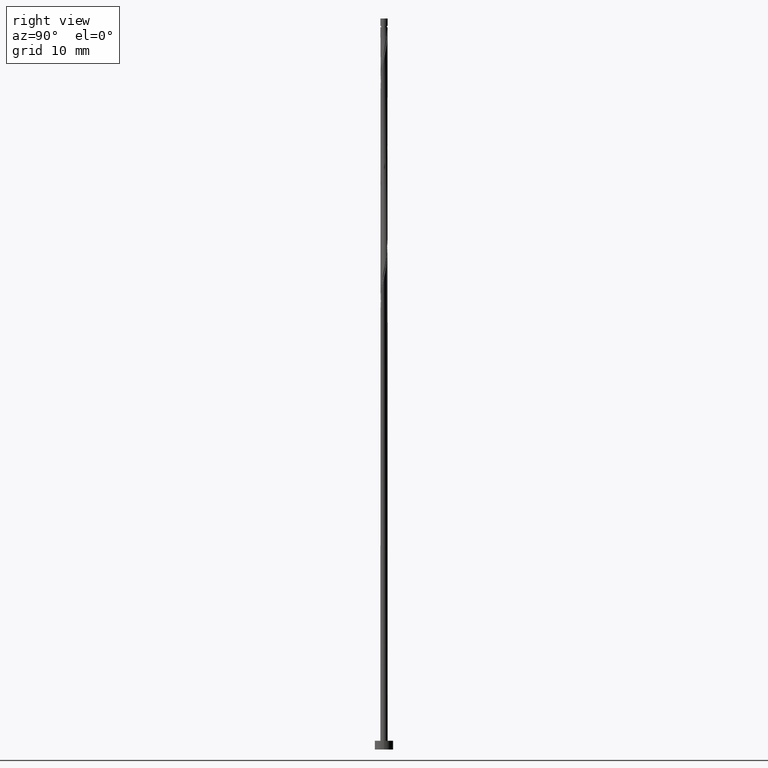
[diagram: clean part render]
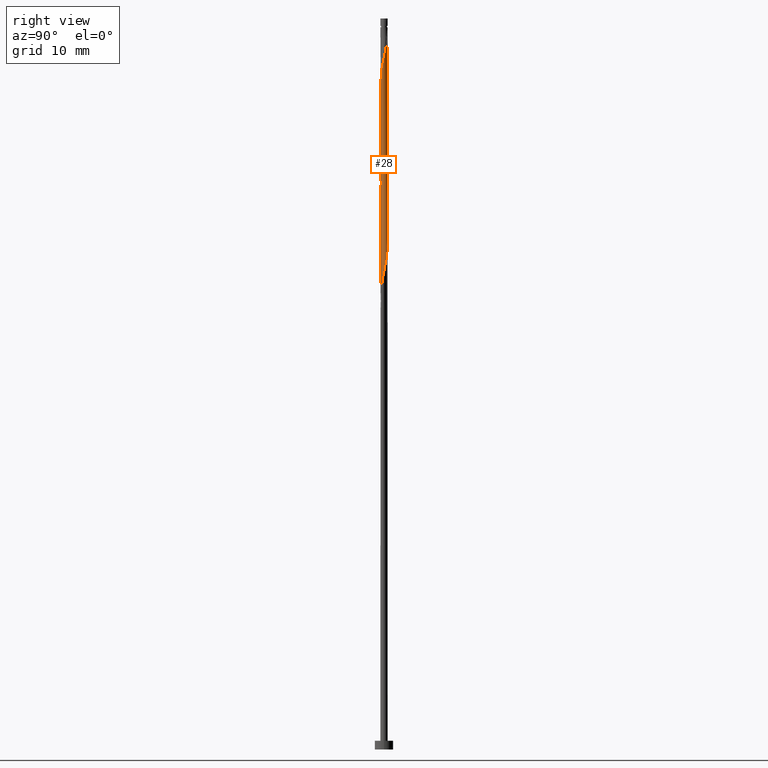
[diagram: same view with one face highlighted and labeled with its STEP entity id]
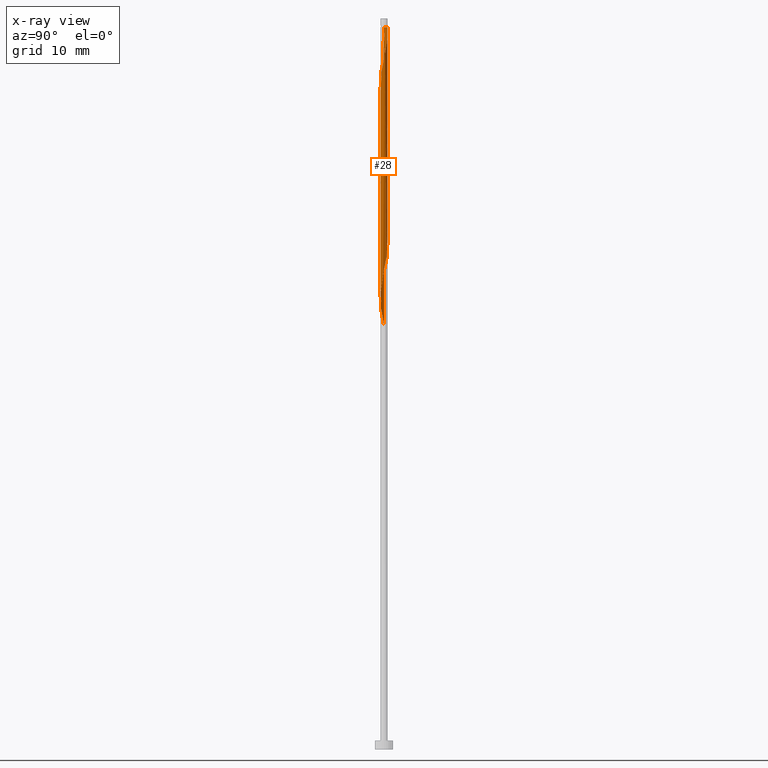
[diagram: x-ray of the same camera — body ghosted, the highlighted face saturated]
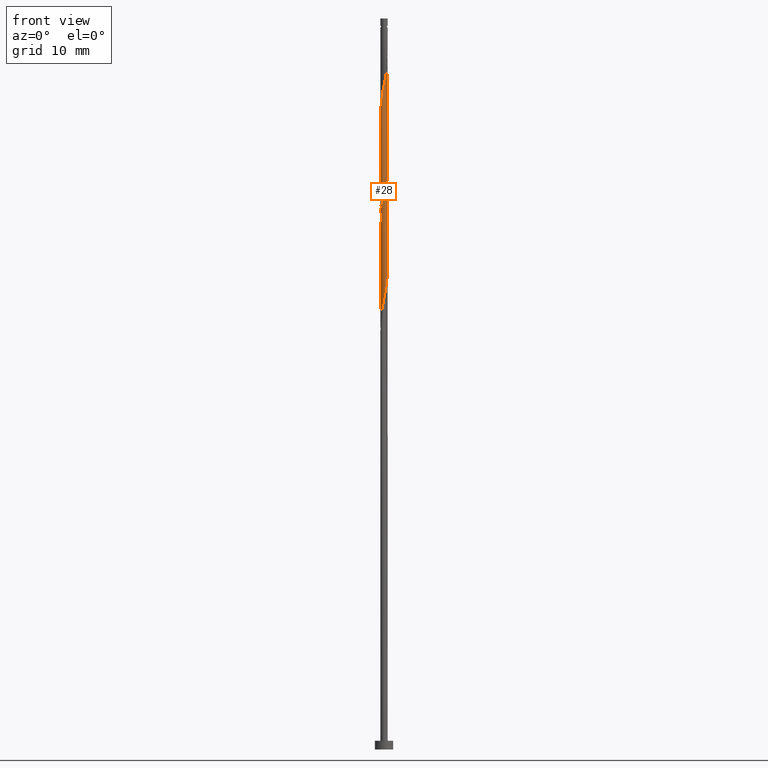
[diagram: same view with one face highlighted and labeled with its STEP entity id]
A machine part, right view. The second image highlights one B-rep face of the part: STEP entity #28.
The next image is the same camera in x-ray: the body ghosted, the highlighted face saturated — about 0% of this face is hidden behind the body in this view.
A second angle (front view) of the same face is appended — the face is thin or edge-on in the first view.
In plain terms, the highlighted cylindrical surface (bore or boss wall) has radius 0.5 mm, axis along (-0, -0, -1).
Its self-contained STEP definition (entity closure, byte-faithful):
#2 = CARTESIAN_POINT ( 'NONE',  ( -0.1612817931379151581, 0.4814156044766936260, 70.05000000000001137 ) ) ;
#5 = CARTESIAN_POINT ( 'NONE',  ( 0.3362772466861008169, 0.3803819322636879940, 67.54999999999999716 ) ) ;
#7 = DIRECTION ( 'NONE',  ( -0.000000000000000000, -0.000000000000000000, -1.000000000000000000 ) ) ;
#25 = CARTESIAN_POINT ( 'NONE',  ( 0.000000000000000000, 0.000000000000000000, 100.0000000000000000 ) ) ;
#28 = ADVANCED_FACE ( 'NONE', ( #635 ), #649, .T. ) ;
#31 = CARTESIAN_POINT ( 'NONE',  ( 0.07409163498720100494, 0.4944799587697403798, 97.96666666666666856 ) ) ;
#46 =( BOUNDED_CURVE ( )  B_SPLINE_CURVE ( 2, ( #1132, #177, #85, #594, #514, #1028, #937, #407, #829, #71, #200, #92, #521, #1237, #291, #340, #958, #843, #640, #117, #540, #1094, #145, #393, #817, #970, #1273, #646, #31, #880, #590 ),
 .UNSPECIFIED., .F., .T. ) 
 B_SPLINE_CURVE_WITH_KNOTS ( ( 3, 2, 2, 2, 2, 2, 2, 2, 2, 2, 2, 2, 2, 2, 2, 3 ),
 ( 0.5545248053855292847, 0.5555555555555555802, 0.5694444444444444198, 0.5833333333333332593, 0.5972222222222222099, 0.6111111111111112715, 0.6250000000000001110, 0.6388888888888889506, 0.6527777777777779011, 0.6666666666666668517, 0.6805555555555556912, 0.6944444444444446418, 0.7083333333333334814, 0.7222222222222224319, 0.7361111111111113825, 0.7500000000000002220 ),
 .UNSPECIFIED. ) 
 CURVE ( )  GEOMETRIC_REPRESENTATION_ITEM ( )  RATIONAL_B_SPLINE_CURVE ( ( 0.9071930855141279171, 0.9080659294509754176, 0.9090909090909153889, 0.8952797754656498519, 0.9090909090909153889, 0.8952797754656498519, 0.9090909090909153889, 0.8952797754656498519, 0.9090909090909153889, 0.8952797754656498519, 0.9090909090909153889, 0.8952797754656498519, 0.9090909090909153889, 0.8952797754656498519, 0.9090909090909153889, 0.8952797754656498519, 0.9090909090909153889, 0.8952797754656498519, 0.9090909090909153889, 0.8952797754656498519, 0.9090909090909153889, 0.8952797754656498519, 0.9090909090909153889, 0.8952797754656498519, 0.9090909090909153889, 0.8952797754656498519, 0.9090909090909153889, 0.8952797754656498519, 0.9090909090909153889, 0.8952797754656496299, 0.9090909090909156109 ) ) 
 REPRESENTATION_ITEM ( '' )  );
#49 = CARTESIAN_POINT ( 'NONE',  ( 0.3911863884632766353, 0.3114052174917097404, 82.13333333333333997 ) ) ;
#55 = CARTESIAN_POINT ( 'NONE',  ( -0.4975590398240158918, 0.1010336722130055070, 87.54999999999999716 ) ) ;
#64 = CARTESIAN_POINT ( 'NONE',  ( -0.5000000000000006661, 1.559254633332027816E-16, 88.02776939948988399 ) ) ;
#70 = DIRECTION ( 'NONE',  ( -0.000000000000000000, -0.000000000000000000, -1.000000000000000000 ) ) ;
#71 = CARTESIAN_POINT ( 'NONE',  ( -0.1612817931379152137, -0.4814156044766937370, 90.05000000000002558 ) ) ;
#75 = AXIS2_PLACEMENT_3D ( 'NONE', #257, #70, #1012 ) ;
#85 = CARTESIAN_POINT ( 'NONE',  ( -0.4998335745014880205, -0.01289952716443847763, 87.13333333333333997 ) ) ;
#92 = CARTESIAN_POINT ( 'NONE',  ( 0.01309852316351374675, -0.5075443130627872446, 90.88333333333333997 ) ) ;
#95 = ORIENTED_EDGE ( 'NONE', *, *, #253, .F. ) ;
#103 = CARTESIAN_POINT ( 'NONE',  ( -0.4998335745014880205, 0.01289952716443853141, 72.96666666666664014 ) ) ;
#110 = CARTESIAN_POINT ( 'NONE',  ( -0.3911863884632766353, -0.3114052174917097404, 74.63333333333331154 ) ) ;
#117 = CARTESIAN_POINT ( 'NONE',  ( 0.5021081091789604267, -0.07523461788412882933, 94.21666666666666856 ) ) ;
#131 = ORIENTED_EDGE ( 'NONE', *, *, #234, .F. ) ;
#145 = CARTESIAN_POINT ( 'NONE',  ( 0.4652780234504774182, 0.1830747412780303895, 95.46666666666666856 ) ) ;
#159 = CARTESIAN_POINT ( 'NONE',  ( -0.4329970070769387780, 0.2651158103430555912, 86.71666666666666856 ) ) ;
#171 = EDGE_CURVE ( 'NONE', #1353, #1081, #1303, .T. ) ;
#177 = CARTESIAN_POINT ( 'NONE',  ( -0.5000000000000007772, -0.006450837166011485872, 87.10284623704926332 ) ) ;
#197 = CARTESIAN_POINT ( 'NONE',  ( 0.1612817931379150194, -0.4814156044766936260, 62.54999999999999716 ) ) ;
#200 = CARTESIAN_POINT ( 'NONE',  ( -0.07409163498720072738, -0.4944799587697403798, 90.46666666666665435 ) ) ;
#204 = VERTEX_POINT ( 'NONE', #1307 ) ;
#211 = CARTESIAN_POINT ( 'NONE',  ( -0.2387454690295328086, 0.4393183367648896831, 70.46666666666666856 ) ) ;
#219 = CARTESIAN_POINT ( 'NONE',  ( 0.3162091449211504313, -0.3972210690530859067, 78.38333333333332575 ) ) ;
#225 = CARTESIAN_POINT ( 'NONE',  ( -0.4460955302404527312, -0.2424285027197316256, 74.21666666666666856 ) ) ;
#234 = EDGE_CURVE ( 'NONE', #1353, #204, #46, .T. ) ;
#244 = CARTESIAN_POINT ( 'NONE',  ( 0.5000000000000000000, 6.123233995736766036E-17, 98.79999999999999716 ) ) ;
#248 = CARTESIAN_POINT ( 'NONE',  ( -0.5000000000000006661, -4.855164127740446616E-16, 58.02776939948987689 ) ) ;
#249 = ORIENTED_EDGE ( 'NONE', *, *, #1255, .T. ) ;
#253 = EDGE_CURVE ( 'NONE', #301, #287, #383, .T. ) ;
#257 = CARTESIAN_POINT ( 'NONE',  ( 0.000000000000000000, 0.000000000000000000, 98.79999999999999716 ) ) ;
#275 = CARTESIAN_POINT ( 'NONE',  ( -0.2387454690295328086, 0.4393183367648896831, 85.46666666666665435 ) ) ;
#276 = EDGE_CURVE ( 'NONE', #1226, #1081, #1288, .T. ) ;
#287 = VERTEX_POINT ( 'NONE', #963 ) ;
#291 = CARTESIAN_POINT ( 'NONE',  ( 0.2610881054719552119, -0.4264188096004513095, 92.13333333333335418 ) ) ;
#301 = VERTEX_POINT ( 'NONE', #1169 ) ;
#303 = CARTESIAN_POINT ( 'NONE',  ( 0.4998335745014881315, -0.01289952716443870315, 65.46666666666666856 ) ) ;
#312 = CARTESIAN_POINT ( 'NONE',  ( -0.2610881054719552674, -0.4264188096004511985, 60.46666666666666146 ) ) ;
#315 = CARTESIAN_POINT ( 'NONE',  ( -0.5021081091789604267, -0.07523461788412846851, 73.38333333333332575 ) ) ;
#320 = CARTESIAN_POINT ( 'NONE',  ( -0.3362772466861005394, -0.3803819322636881606, 60.04999999999998295 ) ) ;
#325 = CARTESIAN_POINT ( 'NONE',  ( -0.09949874371066196044, -0.4900000000000007683, 76.30000000000001137 ) ) ;
#326 = DIRECTION ( 'NONE',  ( -1.000000000000000000, 0.000000000000000000, 0.000000000000000000 ) ) ;
#331 = CARTESIAN_POINT ( 'NONE',  ( -0.3362772466861005394, -0.3803819322636881606, 75.05000000000001137 ) ) ;
#334 = CARTESIAN_POINT ( 'NONE',  ( 0.4741018197097064957, 0.1588315603019300470, 66.29999999999999716 ) ) ;
#340 = CARTESIAN_POINT ( 'NONE',  ( 0.3362772466861005394, -0.3803819322636883271, 92.55000000000001137 ) ) ;
#354 =( BOUNDED_CURVE ( )  B_SPLINE_CURVE ( 2, ( #64, #784, #1223, #55, #1110, #159, #1314, #1131, #275, #1105, #488, #997, #910, #467, #573, #1003, #49, #474, #895, #374, #790 ),
 .UNSPECIFIED., .F., .T. ) 
 B_SPLINE_CURVE_WITH_KNOTS ( ( 3, 2, 2, 2, 2, 2, 2, 2, 2, 2, 3 ),
 ( 0.4295248053855291737, 0.4305555555555555802, 0.4444444444444444198, 0.4583333333333333148, 0.4722222222222222099, 0.4861111111111111049, 0.5000000000000000000, 0.5138888888888888395, 0.5277777777777777901, 0.5416666666666666297, 0.5545248053855290626 ),
 .UNSPECIFIED. ) 
 CURVE ( )  GEOMETRIC_REPRESENTATION_ITEM ( )  RATIONAL_B_SPLINE_CURVE ( ( 0.9071930855141275840, 0.9080659294509750845, 0.9090909090909150558, 0.8952797754656496299, 0.9090909090909150558, 0.8952797754656496299, 0.9090909090909150558, 0.8952797754656496299, 0.9090909090909150558, 0.8952797754656496299, 0.9090909090909150558, 0.8952797754656496299, 0.9090909090909150558, 0.8952797754656496299, 0.9090909090909150558, 0.8952797754656496299, 0.9090909090909150558, 0.8952797754656496299, 0.9090909090909150558, 0.8963047551055897122, 0.9071930855141273620 ) ) 
 REPRESENTATION_ITEM ( '' )  );
#362 = CARTESIAN_POINT ( 'NONE',  ( -0.5000000000000000000, 0.000000000000000000, 100.0000000000000000 ) ) ;
#374 = CARTESIAN_POINT ( 'NONE',  ( 0.5000000000000006661, 0.08152718591022839467, 80.91469696061896855 ) ) ;
#383 = LINE ( 'NONE', #429, #1184 ) ;
#387 = ORIENTED_EDGE ( 'NONE', *, *, #1268, .F. ) ;
#393 = CARTESIAN_POINT ( 'NONE',  ( 0.4329970070769391111, 0.2651158103430553137, 95.88333333333333997 ) ) ;
#407 = CARTESIAN_POINT ( 'NONE',  ( -0.3162091449211504868, -0.3972210690530860178, 89.21666666666668277 ) ) ;
#412 = CARTESIAN_POINT ( 'NONE',  ( -0.1858989642578100510, -0.4724556869372142365, 60.88333333333333286 ) ) ;
#421 = CARTESIAN_POINT ( 'NONE',  ( -0.01309852316351412145, -0.5075443130627871335, 61.71666666666667567 ) ) ;
#423 = CARTESIAN_POINT ( 'NONE',  ( 0.2387454690295328086, -0.4393183367648896831, 77.96666666666666856 ) ) ;
#429 = CARTESIAN_POINT ( 'NONE',  ( -0.5000000000000000000, 0.000000000000000000, 100.0000000000000000 ) ) ;
#454 = VECTOR ( 'NONE', #961, 1000.000000000000000 ) ;
#467 = CARTESIAN_POINT ( 'NONE',  ( 0.1858989642578099122, 0.4724556869372143475, 83.38333333333332575 ) ) ;
#474 = CARTESIAN_POINT ( 'NONE',  ( 0.4460955302404527867, 0.2424285027197315423, 81.71666666666664014 ) ) ;
#488 = CARTESIAN_POINT ( 'NONE',  ( -0.07409163498720063024, 0.4944799587697402687, 84.63333333333332575 ) ) ;
#514 = CARTESIAN_POINT ( 'NONE',  ( -0.4652780234504773071, -0.1830747412780305006, 87.96666666666666856 ) ) ;
#520 = CARTESIAN_POINT ( 'NONE',  ( 0.5021081091789604267, 0.07523461788412814932, 65.88333333333332575 ) ) ;
#521 = CARTESIAN_POINT ( 'NONE',  ( 0.09949874371066182166, -0.4900000000000008238, 91.30000000000002558 ) ) ;
#530 = CARTESIAN_POINT ( 'NONE',  ( -0.4975590398240158918, 0.1010336722130055070, 72.54999999999999716 ) ) ;
#540 = CARTESIAN_POINT ( 'NONE',  ( 0.4998335745014880205, 0.01289952716443851580, 94.63333333333335418 ) ) ;
#573 = CARTESIAN_POINT ( 'NONE',  ( 0.2610881054719556005, 0.4264188096004509765, 82.96666666666664014 ) ) ;
#580 = CARTESIAN_POINT ( 'NONE',  ( 0.5000000000000007772, 2.959782747103310096E-16, 80.52776939948985557 ) ) ;
#590 = CARTESIAN_POINT ( 'NONE',  ( -0.09949874371066166900, 0.4899999999999998801, 98.80000000000001137 ) ) ;
#594 = CARTESIAN_POINT ( 'NONE',  ( -0.4975590398240160028, -0.1010336722130054932, 87.55000000000001137 ) ) ;
#613 = CARTESIAN_POINT ( 'NONE',  ( 0.09949874371066202983, 0.4900000000000007683, 68.80000000000001137 ) ) ;
#627 = CARTESIAN_POINT ( 'NONE',  ( 0.4652780234504772516, -0.1830747412780305561, 79.63333333333333997 ) ) ;
#632 = CARTESIAN_POINT ( 'NONE',  ( 0.4975590398240158918, -0.1010336722130055764, 65.04999999999999716 ) ) ;
#634 = CARTESIAN_POINT ( 'NONE',  ( -0.4652780234504771961, 0.1830747412780305838, 72.13333333333333997 ) ) ;
#635 = FACE_OUTER_BOUND ( 'NONE', #1343, .T. ) ;
#640 = CARTESIAN_POINT ( 'NONE',  ( 0.4741018197097065512, -0.1588315603019302691, 93.80000000000001137 ) ) ;
#641 = CARTESIAN_POINT ( 'NONE',  ( 0.07409163498720061636, -0.4944799587697402687, 77.13333333333332575 ) ) ;
#646 = CARTESIAN_POINT ( 'NONE',  ( 0.1612817931379155190, 0.4814156044766936260, 97.54999999999999716 ) ) ;
#649 = CYLINDRICAL_SURFACE ( 'NONE', #1283, 0.5000000000000000000 ) ;
#654 = ORIENTED_EDGE ( 'NONE', *, *, #171, .T. ) ;
#655 = DIRECTION ( 'NONE',  ( -0.000000000000000000, -0.000000000000000000, -1.000000000000000000 ) ) ;
#717 = ORIENTED_EDGE ( 'NONE', *, *, #1309, .F. ) ;
#738 = CARTESIAN_POINT ( 'NONE',  ( -0.3746030759990446324, 0.3311684396980706935, 71.29999999999999716 ) ) ;
#743 = CARTESIAN_POINT ( 'NONE',  ( 0.01309852316351392196, 0.5075443130627870225, 69.21666666666665435 ) ) ;
#748 = CARTESIAN_POINT ( 'NONE',  ( -0.4741018197097065512, -0.1588315603019298805, 58.80000000000000426 ) ) ;
#750 = CARTESIAN_POINT ( 'NONE',  ( -0.4741018197097065512, -0.1588315603019298805, 73.79999999999999716 ) ) ;
#755 = CARTESIAN_POINT ( 'NONE',  ( 0.2387454690295328086, -0.4393183367648896831, 62.96666666666668277 ) ) ;
#780 = DIRECTION ( 'NONE',  ( -0.000000000000000000, -0.000000000000000000, -1.000000000000000000 ) ) ;
#784 = CARTESIAN_POINT ( 'NONE',  ( -0.5000000000000006661, 0.006450837166010866576, 87.99715376295075941 ) ) ;
#790 = CARTESIAN_POINT ( 'NONE',  ( 0.5000000000000007772, 2.959782747103310096E-16, 80.52776939948985557 ) ) ;
#797 = ORIENTED_EDGE ( 'NONE', *, *, #1309, .T. ) ;
#817 = CARTESIAN_POINT ( 'NONE',  ( 0.3746030759990447989, 0.3311684396980708045, 96.30000000000001137 ) ) ;
#819 = LINE ( 'NONE', #1135, #454 ) ;
#824 = VECTOR ( 'NONE', #780, 1000.000000000000000 ) ;
#826 = CARTESIAN_POINT ( 'NONE',  ( 0.4460955302404527867, 0.2424285027197315423, 66.71666666666668277 ) ) ;
#829 = CARTESIAN_POINT ( 'NONE',  ( -0.2387454690295328918, -0.4393183367648896831, 89.63333333333331154 ) ) ;
#834 = CARTESIAN_POINT ( 'NONE',  ( -0.3911863884632766353, -0.3114052174917097404, 59.63333333333333286 ) ) ;
#837 = CARTESIAN_POINT ( 'NONE',  ( 0.5000000000000007772, 2.959782747103310096E-16, 80.52776939948985557 ) ) ;
#841 = CARTESIAN_POINT ( 'NONE',  ( 0.2610881054719556005, 0.4264188096004509765, 67.96666666666668277 ) ) ;
#843 = CARTESIAN_POINT ( 'NONE',  ( 0.4460955302404527867, -0.2424285027197316811, 93.38333333333333997 ) ) ;
#844 = CARTESIAN_POINT ( 'NONE',  ( -0.07409163498720063024, 0.4944799587697402687, 69.63333333333333997 ) ) ;
#853 = CARTESIAN_POINT ( 'NONE',  ( 0.4329970070769386670, -0.2651158103430559243, 79.21666666666665435 ) ) ;
#856 = CARTESIAN_POINT ( 'NONE',  ( 0.07409163498720061636, -0.4944799587697402687, 62.13333333333331865 ) ) ;
#880 = CARTESIAN_POINT ( 'NONE',  ( -0.01309852316351531321, 0.5075443130627873556, 98.38333333333332575 ) ) ;
#895 = CARTESIAN_POINT ( 'NONE',  ( 0.4741018197097064957, 0.1588315603019300470, 81.29999999999999716 ) ) ;
#910 = CARTESIAN_POINT ( 'NONE',  ( 0.09949874371066202983, 0.4900000000000007683, 83.79999999999998295 ) ) ;
#937 = CARTESIAN_POINT ( 'NONE',  ( -0.3746030759990447989, -0.3311684396980705825, 88.79999999999996874 ) ) ;
#945 = CARTESIAN_POINT ( 'NONE',  ( -0.5000000000000007772, -9.803696796398973244E-17, 87.07223060051012453 ) ) ;
#946 = CARTESIAN_POINT ( 'NONE',  ( 0.4652780234504772516, -0.1830747412780305561, 64.63333333333333997 ) ) ;
#954 = CARTESIAN_POINT ( 'NONE',  ( 0.1858989642578099122, 0.4724556869372143475, 68.38333333333333997 ) ) ;
#958 = CARTESIAN_POINT ( 'NONE',  ( 0.3911863884632766908, -0.3114052174917099070, 92.96666666666666856 ) ) ;
#959 = CARTESIAN_POINT ( 'NONE',  ( -0.2610881054719552674, -0.4264188096004511985, 75.46666666666665435 ) ) ;
#961 = DIRECTION ( 'NONE',  ( -0.000000000000000000, -0.000000000000000000, -1.000000000000000000 ) ) ;
#963 = CARTESIAN_POINT ( 'NONE',  ( -0.5000000000000006661, 1.559254633332027816E-16, 88.02776939948988399 ) ) ;
#966 = CARTESIAN_POINT ( 'NONE',  ( 0.5000000000000007772, -0.006450837166010383456, 80.49715376295073099 ) ) ;
#970 = CARTESIAN_POINT ( 'NONE',  ( 0.3162091449211505423, 0.3972210690530860178, 96.71666666666665435 ) ) ;
#997 = CARTESIAN_POINT ( 'NONE',  ( 0.01309852316351392196, 0.5075443130627870225, 84.21666666666668277 ) ) ;
#1003 = CARTESIAN_POINT ( 'NONE',  ( 0.3362772466861008169, 0.3803819322636879940, 82.54999999999998295 ) ) ;
#1012 = DIRECTION ( 'NONE',  ( -1.000000000000000000, 0.000000000000000000, 0.000000000000000000 ) ) ;
#1028 = CARTESIAN_POINT ( 'NONE',  ( -0.4329970070769388890, -0.2651158103430555912, 88.38333333333331154 ) ) ;
#1042 = CARTESIAN_POINT ( 'NONE',  ( -0.4460955302404527312, -0.2424285027197316256, 59.21666666666666146 ) ) ;
#1052 = CARTESIAN_POINT ( 'NONE',  ( 0.4329970070769386670, -0.2651158103430559243, 64.21666666666665435 ) ) ;
#1054 = CARTESIAN_POINT ( 'NONE',  ( -0.1858989642578100510, -0.4724556869372142365, 75.88333333333333997 ) ) ;
#1057 = CIRCLE ( 'NONE', #75, 0.5000000000000002220 ) ;
#1061 = CARTESIAN_POINT ( 'NONE',  ( 0.4975590398240158918, -0.1010336722130055764, 80.05000000000002558 ) ) ;
#1066 = CARTESIAN_POINT ( 'NONE',  ( -0.01309852316351412145, -0.5075443130627871335, 76.71666666666666856 ) ) ;
#1081 = VERTEX_POINT ( 'NONE', #248 ) ;
#1094 = CARTESIAN_POINT ( 'NONE',  ( 0.4975590398240160028, 0.1010336722130053960, 95.04999999999998295 ) ) ;
#1100 = VERTEX_POINT ( 'NONE', #244 ) ;
#1105 = CARTESIAN_POINT ( 'NONE',  ( -0.1612817931379151581, 0.4814156044766936260, 85.04999999999996874 ) ) ;
#1110 = CARTESIAN_POINT ( 'NONE',  ( -0.4652780234504771961, 0.1830747412780305838, 87.13333333333333997 ) ) ;
#1131 = CARTESIAN_POINT ( 'NONE',  ( -0.3162091449211504313, 0.3972210690530858512, 85.88333333333335418 ) ) ;
#1132 = CARTESIAN_POINT ( 'NONE',  ( -0.5000000000000007772, -9.803696796398973244E-17, 87.07223060051012453 ) ) ;
#1135 = CARTESIAN_POINT ( 'NONE',  ( 0.5000000000000000000, 6.123233995736766036E-17, 100.0000000000000000 ) ) ;
#1159 = CARTESIAN_POINT ( 'NONE',  ( 0.3746030759990445214, -0.3311684396980708600, 63.80000000000001137 ) ) ;
#1164 = CARTESIAN_POINT ( 'NONE',  ( -0.3162091449211504313, 0.3972210690530858512, 70.88333333333331154 ) ) ;
#1169 = CARTESIAN_POINT ( 'NONE',  ( -0.5000000000000002220, 0.000000000000000000, 98.79999999999999716 ) ) ;
#1171 = CARTESIAN_POINT ( 'NONE',  ( 0.3746030759990445214, -0.3311684396980708600, 78.80000000000002558 ) ) ;
#1176 = CARTESIAN_POINT ( 'NONE',  ( -0.5000000000000006661, -4.855164127740446616E-16, 58.02776939948987689 ) ) ;
#1177 = CARTESIAN_POINT ( 'NONE',  ( 0.4998335745014881315, -0.01289952716443870315, 80.46666666666661172 ) ) ;
#1181 = CARTESIAN_POINT ( 'NONE',  ( 0.3162091449211504313, -0.3972210690530859067, 63.38333333333333286 ) ) ;
#1184 = VECTOR ( 'NONE', #7, 1000.000000000000000 ) ;
#1195 = ORIENTED_EDGE ( 'NONE', *, *, #276, .F. ) ;
#1223 = CARTESIAN_POINT ( 'NONE',  ( -0.4998335745014880205, 0.01289952716443853141, 87.96666666666666856 ) ) ;
#1226 = VERTEX_POINT ( 'NONE', #580 ) ;
#1237 = CARTESIAN_POINT ( 'NONE',  ( 0.1858989642578097734, -0.4724556869372145695, 91.71666666666665435 ) ) ;
#1255 = EDGE_CURVE ( 'NONE', #301, #204, #1057, .T. ) ;
#1259 = CARTESIAN_POINT ( 'NONE',  ( -0.4329970070769387780, 0.2651158103430555912, 71.71666666666664014 ) ) ;
#1267 = CARTESIAN_POINT ( 'NONE',  ( 0.1612817931379150194, -0.4814156044766936260, 77.55000000000002558 ) ) ;
#1268 = EDGE_CURVE ( 'NONE', #287, #1226, #354, .T. ) ;
#1272 = CARTESIAN_POINT ( 'NONE',  ( -0.5000000000000014433, -0.08152718591022664607, 58.41469696061894012 ) ) ;
#1273 = CARTESIAN_POINT ( 'NONE',  ( 0.2387454690295330029, 0.4393183367648896831, 97.13333333333333997 ) ) ;
#1283 = AXIS2_PLACEMENT_3D ( 'NONE', #25, #655, #326 ) ;
#1288 =( BOUNDED_CURVE ( )  B_SPLINE_CURVE ( 2, ( #837, #966, #1177, #1061, #627, #853, #1171, #219, #423, #1267, #641, #1066, #325, #1054, #959, #331, #110, #225, #750, #315, #103, #530, #634, #1259, #738, #1164, #211, #2, #844, #743, #613, #954, #841, #5, #1357, #826, #334, #520, #303, #632, #946, #1052, #1159, #1181, #755, #197, #856, #421, #1366, #412, #312, #320, #834, #1042, #748, #1272, #1176 ),
 .UNSPECIFIED., .F., .T. ) 
 B_SPLINE_CURVE_WITH_KNOTS ( ( 3, 2, 2, 2, 2, 2, 2, 2, 2, 2, 2, 2, 2, 2, 2, 2, 2, 2, 2, 2, 2, 2, 2, 2, 2, 2, 2, 2, 3 ),
 ( 0.5545248053855290626, 0.5555555555555555802, 0.5694444444444444198, 0.5833333333333333703, 0.5972222222222222099, 0.6111111111111111605, 0.6250000000000000000, 0.6388888888888888395, 0.6527777777777777901, 0.6666666666666666297, 0.6805555555555555802, 0.6944444444444444198, 0.7083333333333333703, 0.7222222222222222099, 0.7361111111111111605, 0.7500000000000000000, 0.7638888888888888395, 0.7777777777777777901, 0.7916666666666666297, 0.8055555555555555802, 0.8194444444444444198, 0.8333333333333333703, 0.8472222222222222099, 0.8611111111111111605, 0.8750000000000000000, 0.8888888888888888395, 0.9027777777777777901, 0.9166666666666666297, 0.9295248053855293957 ),
 .UNSPECIFIED. ) 
 CURVE ( )  GEOMETRIC_REPRESENTATION_ITEM ( )  RATIONAL_B_SPLINE_CURVE ( ( 0.9071930855141273620, 0.9080659294509749735, 0.9090909090909150558, 0.8952797754656496299, 0.9090909090909150558, 0.8952797754656496299, 0.9090909090909150558, 0.8952797754656496299, 0.9090909090909150558, 0.8952797754656496299, 0.9090909090909150558, 0.8952797754656496299, 0.9090909090909150558, 0.8952797754656496299, 0.9090909090909150558, 0.8952797754656496299, 0.9090909090909150558, 0.8952797754656496299, 0.9090909090909150558, 0.8952797754656496299, 0.9090909090909150558, 0.8952797754656496299, 0.9090909090909150558, 0.8952797754656496299, 0.9090909090909150558, 0.8952797754656496299, 0.9090909090909150558, 0.8952797754656496299, 0.9090909090909150558, 0.8952797754656496299, 0.9090909090909150558, 0.8952797754656496299, 0.9090909090909150558, 0.8952797754656496299, 0.9090909090909150558, 0.8952797754656496299, 0.9090909090909150558, 0.8952797754656496299, 0.9090909090909150558, 0.8952797754656496299, 0.9090909090909150558, 0.8952797754656496299, 0.9090909090909150558, 0.8952797754656496299, 0.9090909090909150558, 0.8952797754656496299, 0.9090909090909150558, 0.8952797754656496299, 0.9090909090909150558, 0.8952797754656496299, 0.9090909090909150558, 0.8952797754656496299, 0.9090909090909150558, 0.8952797754656496299, 0.9090909090909150558, 0.8963047551055893791, 0.9071930855141279171 ) ) 
 REPRESENTATION_ITEM ( '' )  );
#1303 = LINE ( 'NONE', #362, #824 ) ;
#1307 = CARTESIAN_POINT ( 'NONE',  ( -0.09949874371066166900, 0.4899999999999998801, 98.79999999999999716 ) ) ;
#1309 = EDGE_CURVE ( 'NONE', #1100, #1226, #819, .T. ) ;
#1314 = CARTESIAN_POINT ( 'NONE',  ( -0.3746030759990446324, 0.3311684396980706935, 86.29999999999999716 ) ) ;
#1343 = EDGE_LOOP ( 'NONE', ( #95, #249, #131, #654, #1195, #717, #797, #387 ) ) ;
#1353 = VERTEX_POINT ( 'NONE', #945 ) ;
#1357 = CARTESIAN_POINT ( 'NONE',  ( 0.3911863884632766353, 0.3114052174917097404, 67.13333333333333997 ) ) ;
#1366 = CARTESIAN_POINT ( 'NONE',  ( -0.09949874371066196044, -0.4900000000000007683, 61.29999999999999716 ) ) ;